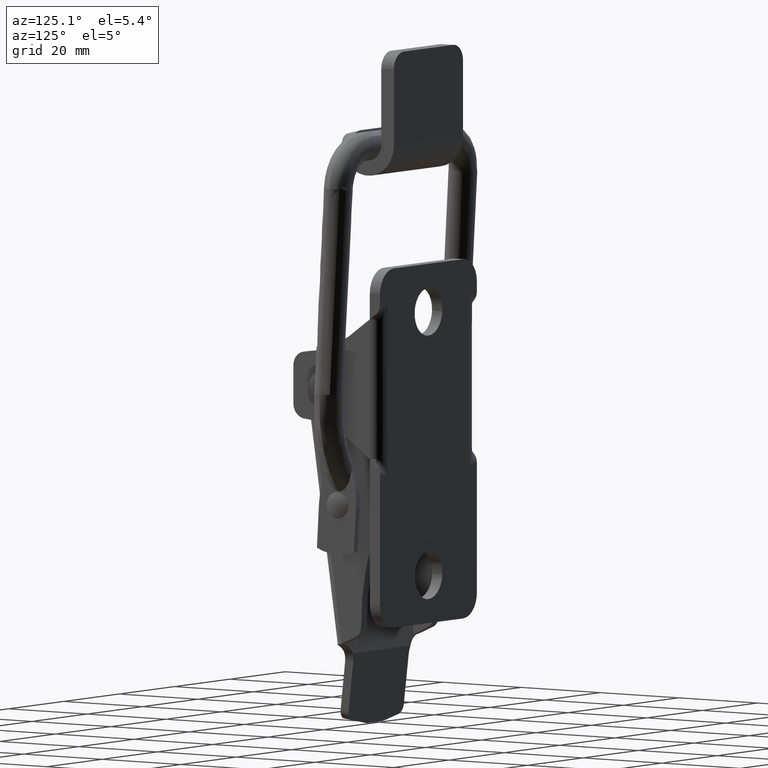
[diagram: clean part render]
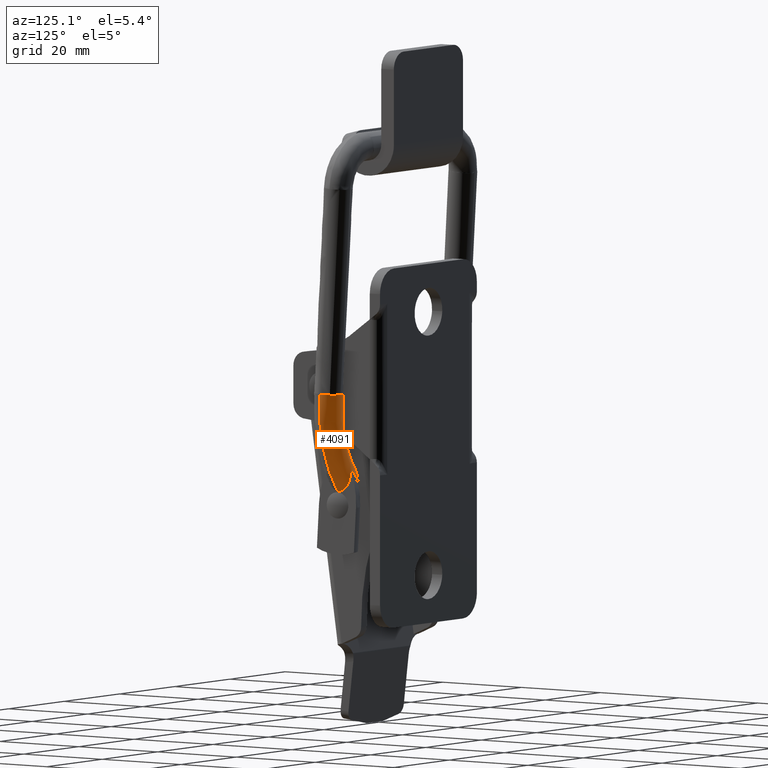
[diagram: same view with one face highlighted and labeled with its STEP entity id]
A machine part, auxiliary view. The second image highlights one B-rep face of the part: STEP entity #4091.
In plain terms, the highlighted face is a freeform B-spline surface patch.
Its self-contained STEP definition (entity closure, byte-faithful):
#723=CARTESIAN_POINT('',(0.137093469235572,-22.484727791801340,-51.154947865300997));
#724=VERTEX_POINT('',#723);
#730=CARTESIAN_POINT('',(-2.689967549346665,-19.504710261246451,-50.988514183178097));
#731=VERTEX_POINT('',#730);
#732=CARTESIAN_POINT('',(-2.689967549346665,-19.504710261246451,-50.988514183178097));
#733=CARTESIAN_POINT('',(-1.907019794257721,-19.548666006713979,-51.032519331018229));
#734=CARTESIAN_POINT('',(-1.147001929759529,-19.915162416843760,-51.076101186494540));
#735=CARTESIAN_POINT('',(-0.142610684296185,-21.040741415285868,-51.135409986723197));
#736=CARTESIAN_POINT('',(0.131808299511303,-21.760927585027929,-51.152717164481800));
#737=CARTESIAN_POINT('',(0.137093469235572,-22.484727791801340,-51.154947865300997));
#738=B_SPLINE_CURVE_WITH_KNOTS('',3,(#732,#733,#734,#735,#736,#737),.UNSPECIFIED.,.F.,.U.,(4,2,4),(0.500000000000000,0.625000000000000,0.740274518667277),.UNSPECIFIED.);
#739=EDGE_CURVE('',#731,#724,#738,.T.);
#741=CARTESIAN_POINT('',(-3.621479552913594,-19.601999171914159,-50.936558849480321));
#742=VERTEX_POINT('',#741);
#743=CARTESIAN_POINT('',(-3.621479552913594,-19.601999171914159,-50.936558849480321));
#744=CARTESIAN_POINT('',(-3.318439139552745,-19.521238628405740,-50.953329756953480));
#745=CARTESIAN_POINT('',(-3.003139846527462,-19.487127932410040,-50.970912505912608));
#746=CARTESIAN_POINT('',(-2.689967549346665,-19.504710261246451,-50.988514183178097));
#747=B_SPLINE_CURVE_WITH_KNOTS('',3,(#743,#744,#745,#746),.UNSPECIFIED.,.F.,.U.,(4,4),(0.450000050397062,0.500000000000000),.UNSPECIFIED.);
#748=EDGE_CURVE('',#742,#731,#747,.T.);
#750=CARTESIAN_POINT('',(-3.026135161405098,-25.495284800460020,-50.985681034919203));
#751=VERTEX_POINT('',#750);
#765=CARTESIAN_POINT('',(-0.935845694825824,-24.800423444203219,-51.100993816314677));
#766=VERTEX_POINT('',#765);
#767=CARTESIAN_POINT('',(-0.935845694825824,-24.800423444203219,-51.100993816314677));
#768=CARTESIAN_POINT('',(-1.512803321931368,-25.282671585493059,-51.069941681681748));
#769=CARTESIAN_POINT('',(-2.275578239368927,-25.537432026979609,-51.027865683849633));
#770=CARTESIAN_POINT('',(-3.026135161405098,-25.495284800460020,-50.985681034919203));
#771=B_SPLINE_CURVE_WITH_KNOTS('',3,(#767,#768,#769,#770),.UNSPECIFIED.,.F.,.U.,(4,4),(0.880170062629592,1.0),.UNSPECIFIED.);
#772=EDGE_CURVE('',#766,#751,#771,.T.);
#819=CARTESIAN_POINT('',(0.137093469235572,-22.484727791801340,-51.154947865300997));
#820=CARTESIAN_POINT('',(0.137536116357904,-22.545794040707410,-51.155135883232063));
#821=CARTESIAN_POINT('',(0.136063086660573,-22.606886023827151,-51.155216587800290));
#822=CARTESIAN_POINT('',(0.088606824372564,-23.452070795242939,-51.154815294985063));
#823=CARTESIAN_POINT('',(-0.277460730384392,-24.213321500281399,-51.136330111005691));
#824=CARTESIAN_POINT('',(-0.886404468811603,-24.758385273664921,-51.103652864048442));
#825=CARTESIAN_POINT('',(-0.910952138594781,-24.779616092199308,-51.102333600290649));
#826=CARTESIAN_POINT('',(-0.935845694825824,-24.800423444203219,-51.100993816314677));
#827=B_SPLINE_CURVE_WITH_KNOTS('',3,(#819,#820,#821,#822,#823,#824,#825,#826),.UNSPECIFIED.,.F.,.U.,(4,2,2,4),(0.740274518667277,0.750000000000000,0.875000000000000,0.880170062629592),.UNSPECIFIED.);
#828=EDGE_CURVE('',#724,#766,#827,.T.);
#3865=CARTESIAN_POINT('',(-3.621480011083741,-19.601999294016991,-50.936558824124212));
#3866=CARTESIAN_POINT('',(-3.318439775159710,-19.521238697169021,-50.953329721508688));
#3867=CARTESIAN_POINT('',(-3.003140162187055,-19.487127914688070,-50.970912488171138));
#3868=CARTESIAN_POINT('',(-1.907036017245690,-19.548666127642399,-51.032518420695503));
#3869=CARTESIAN_POINT('',(-1.147040558775686,-19.915162704789850,-51.076099018899299));
#3870=CARTESIAN_POINT('',(-0.102039557167935,-21.086301579277752,-51.137805935645702));
#3871=CARTESIAN_POINT('',(0.176531044614666,-21.883732199342798,-51.155552273317703));
#3872=CARTESIAN_POINT('',(0.088522569579867,-23.452060946274049,-51.154810556838001));
#3873=CARTESIAN_POINT('',(-0.277514565770748,-24.213301567074200,-51.136327070052303));
#3874=CARTESIAN_POINT('',(-1.446978346376486,-25.260114476756151,-51.073571207800804));
#3875=CARTESIAN_POINT('',(-2.243203629304120,-25.539240666855950,-51.029685272436602));
#3876=CARTESIAN_POINT('',(-3.026135161405098,-25.495284800460020,-50.985681034919203));
#3877=CARTESIAN_POINT('',(-3.802769927812618,-19.593355566685968,-54.170736776253463));
#3878=CARTESIAN_POINT('',(-3.499148472711398,-19.512622681801670,-54.177138833039542));
#3879=CARTESIAN_POINT('',(-3.183603370704478,-19.478523603996749,-54.190342121589431));
#3880=CARTESIAN_POINT('',(-2.087942104974020,-19.540040700892551,-54.259848935804101));
#3881=CARTESIAN_POINT('',(-1.330584255034796,-19.906411519437100,-54.350483973132299));
#3882=CARTESIAN_POINT('',(-0.294011724729301,-21.077148532580701,-54.562553229695702));
#3883=CARTESIAN_POINT('',(-0.021180084605107,-21.874305524521748,-54.682681561921392));
#3884=CARTESIAN_POINT('',(-0.120475533483800,-23.442096119496650,-54.883297331849199));
#3885=CARTESIAN_POINT('',(-0.491991177717930,-24.203075530327851,-54.962549411178003));
#3886=CARTESIAN_POINT('',(-1.668988678502940,-25.249529239522449,-55.034193697267412));
#3887=CARTESIAN_POINT('',(-2.467222781336410,-25.528559651048699,-55.026144730479700));
#3888=CARTESIAN_POINT('',(-3.249837971142320,-25.484618867551720,-54.976497006040752));
#3889=CARTESIAN_POINT('',(-3.983781969730311,-18.952628384161279,-57.399957494247957));
#3890=CARTESIAN_POINT('',(-3.679580142537829,-18.873949050278998,-57.396005822296232));
#3891=CARTESIAN_POINT('',(-3.363789909279549,-18.840717329012239,-57.404836015517738));
#3892=CARTESIAN_POINT('',(-2.268570877297390,-18.900669654687299,-57.482232196435596));
#3893=CARTESIAN_POINT('',(-1.513846791756330,-19.257721331929151,-57.619853094342297));
#3894=CARTESIAN_POINT('',(-0.485690448853022,-20.398679052943649,-57.982065548164499));
#3895=CARTESIAN_POINT('',(-0.218589406255615,-21.175559269945499,-58.204426660386702));
#3896=CARTESIAN_POINT('',(-0.329155378998603,-22.703470973576351,-58.606106452286902));
#3897=CARTESIAN_POINT('',(-0.706141547576023,-23.445093835536898,-58.782951655031297));
#3898=CARTESIAN_POINT('',(-1.890661788669690,-24.464929567905202,-58.988800210652592));
#3899=CARTESIAN_POINT('',(-2.690901783695905,-24.736862460474299,-59.016535982585502));
#3900=CARTESIAN_POINT('',(-3.473201092254592,-24.694039370706420,-58.961252996215599));
#3901=CARTESIAN_POINT('',(-4.319149983709560,-16.500768383500940,-63.382859666926223));
#3902=CARTESIAN_POINT('',(-4.013872131548191,-16.429955818277680,-63.359711912289860));
#3903=CARTESIAN_POINT('',(-3.697627418567314,-16.400046777191580,-63.360434272898011));
#3904=CARTESIAN_POINT('',(-2.603228299466250,-16.454004757793950,-63.452457545126599));
#3905=CARTESIAN_POINT('',(-1.853387281700540,-16.775356552935850,-63.677191452006092));
#3906=CARTESIAN_POINT('',(-0.840834769381968,-17.802235392033449,-64.317773303088700));
#3907=CARTESIAN_POINT('',(-0.584358403815212,-18.501439087868899,-64.729676651407786));
#3908=CARTESIAN_POINT('',(-0.715820221281464,-19.876582239589151,-65.504134375565101));
#3909=CARTESIAN_POINT('',(-1.102948884432904,-20.544053793980051,-65.861919770263185));
#3910=CARTESIAN_POINT('',(-2.301416481946215,-21.461921050250201,-66.316586536161594));
#3911=CARTESIAN_POINT('',(-3.105375453325550,-21.706664679112251,-66.410668145450103));
#3912=CARTESIAN_POINT('',(-3.887089109826310,-21.668123264396279,-66.344937236715410));
#3913=CARTESIAN_POINT('',(-4.473283509548539,-14.691272861999050,-66.132572722943479));
#3914=CARTESIAN_POINT('',(-4.167510703107965,-14.626268754847020,-66.100595077236960));
#3915=CARTESIAN_POINT('',(-3.851056936722444,-14.598813027101921,-66.097587964494267));
#3916=CARTESIAN_POINT('',(-2.757034964438005,-14.648345060588881,-66.196339464799692));
#3917=CARTESIAN_POINT('',(-2.009440079768245,-14.943337714203061,-66.461143962795902));
#3918=CARTESIAN_POINT('',(-1.004065079994958,-15.885985984022151,-67.229771285280592));
#3919=CARTESIAN_POINT('',(-0.752475895966597,-16.527836929834351,-67.728861031255207));
#3920=CARTESIAN_POINT('',(-0.893549467862047,-17.790182849676398,-68.674790643192196));
#3921=CARTESIAN_POINT('',(-1.285343516332196,-18.402904508658050,-69.115805632817697));
#3922=CARTESIAN_POINT('',(-2.490226674767345,-19.245482959087848,-69.684924796592298));
#3923=CARTESIAN_POINT('',(-3.295896315799450,-19.470151293356150,-69.809524430125094));
#3924=CARTESIAN_POINT('',(-4.077340581715305,-19.434771269443232,-69.738987644198943));
#3925=CARTESIAN_POINT('',(-4.602741061580987,-12.428412770812290,-68.442071056289734));
#3926=CARTESIAN_POINT('',(-4.296552126172706,-12.370682411842260,-68.402669748215686));
#3927=CARTESIAN_POINT('',(-3.979922599759623,-12.346298890741229,-68.396527109709595));
#3928=CARTESIAN_POINT('',(-2.886217710729600,-12.390288450785141,-68.500935315576797));
#3929=CARTESIAN_POINT('',(-2.140511245017000,-12.652272385844960,-68.799428851956804));
#3930=CARTESIAN_POINT('',(-1.141170683203044,-13.489441379967500,-69.675709410377195));
#3931=CARTESIAN_POINT('',(-0.893690359106881,-14.059471292410000,-70.248100443327303));
#3932=CARTESIAN_POINT('',(-1.042844938917210,-15.180564809262149,-71.338193713679004));
#3933=CARTESIAN_POINT('',(-1.438561373872524,-15.724724907336901,-71.849183339077797));
#3934=CARTESIAN_POINT('',(-2.648838365344310,-16.473021569435200,-72.514527467840310));
#3935=CARTESIAN_POINT('',(-3.455946238608210,-16.672550247792248,-72.664784893361201));
#3936=CARTESIAN_POINT('',(-4.237164016486799,-16.641129133475179,-72.590207603455994));
#3937=B_SPLINE_SURFACE_WITH_KNOTS('',3,3,((#3865,#3877,#3889,#3901,#3913,#3925),(#3866,#3878,#3890,#3902,#3914,#3926),(#3867,#3879,#3891,#3903,#3915,#3927),(#3868,#3880,#3892,#3904,#3916,#3928),(#3869,#3881,#3893,#3905,#3917,#3929),(#3870,#3882,#3894,#3906,#3918,#3930),(#3871,#3883,#3895,#3907,#3919,#3931),(#3872,#3884,#3896,#3908,#3920,#3932),(#3873,#3885,#3897,#3909,#3921,#3933),(#3874,#3886,#3898,#3910,#3922,#3934),(#3875,#3887,#3899,#3911,#3923,#3935),(#3876,#3888,#3900,#3912,#3924,#3936)),.UNSPECIFIED.,.F.,.F.,.U.,(4,2,2,2,2,4),(4,2,4),(0.0,0.942477796076944,3.298672286269305,5.654866776461665,8.011061266654025,10.367255756846390),(0.0,11.991285144683710,23.982570289367420),.UNSPECIFIED.);
#3938=ORIENTED_EDGE('',*,*,#748,.T.);
#3939=ORIENTED_EDGE('',*,*,#739,.T.);
#3940=ORIENTED_EDGE('',*,*,#828,.T.);
#3941=ORIENTED_EDGE('',*,*,#772,.T.);
#3942=CARTESIAN_POINT('',(-4.198275687322552,-17.300000099621560,-71.896447275743867));
#3943=VERTEX_POINT('',#3942);
#3944=CARTESIAN_POINT('',(-3.026135161405098,-25.495284800460020,-50.985681034919203));
#3945=CARTESIAN_POINT('',(-3.249837971142320,-25.484618867551720,-54.976497006040752));
#3946=CARTESIAN_POINT('',(-3.473201092254592,-24.694039370706420,-58.961252996215599));
#3947=CARTESIAN_POINT('',(-3.870553073759265,-21.789017457379590,-66.049937469326821));
#3948=CARTESIAN_POINT('',(-4.046829591225017,-19.787087354827008,-69.194677323347449));
#3949=CARTESIAN_POINT('',(-4.198275687322552,-17.300000099621560,-71.896447275743867));
#3950=B_SPLINE_CURVE_WITH_KNOTS('',3,(#3944,#3945,#3946,#3947,#3948,#3949),.UNSPECIFIED.,.F.,.U.,(4,2,4),(0.0,0.500000000000000,0.960047077071566),.UNSPECIFIED.);
#3951=EDGE_CURVE('',#751,#3943,#3950,.T.);
#3952=ORIENTED_EDGE('',*,*,#3951,.T.);
#3953=CARTESIAN_POINT('',(-0.785983358709918,-17.300000000000001,-67.568005634166397));
#3954=VERTEX_POINT('',#3953);
#3955=CARTESIAN_POINT('',(-4.198275687322552,-17.300000099621560,-71.896447275743867));
#3956=CARTESIAN_POINT('',(-4.146919304475364,-17.299999999999731,-71.903612669980987));
#3957=CARTESIAN_POINT('',(-4.095457454322913,-17.300000000000001,-71.908704579038215));
#3958=CARTESIAN_POINT('',(-3.919973849493190,-17.300000000000001,-71.919122360898186));
#3959=CARTESIAN_POINT('',(-3.795461670084166,-17.300000000000001,-71.914807235418280));
#3960=CARTESIAN_POINT('',(-3.545261227258367,-17.299999999999990,-71.883056976096711));
#3961=CARTESIAN_POINT('',(-3.423052260049225,-17.300000000000001,-71.856056159606908));
#3962=CARTESIAN_POINT('',(-3.244254169519071,-17.300000000000001,-71.800900879550497));
#3963=CARTESIAN_POINT('',(-3.185370832133020,-17.299999999999979,-71.780053606571144));
#3964=CARTESIAN_POINT('',(-3.068984872392905,-17.299999999999979,-71.733611233251466));
#3965=CARTESIAN_POINT('',(-3.011264438026329,-17.299999999999990,-71.707899201788067));
#3966=CARTESIAN_POINT('',(-2.842355117943330,-17.299999999999979,-71.624940548378731));
#3967=CARTESIAN_POINT('',(-2.735054814024958,-17.300000000000011,-71.561869802996327));
#3968=CARTESIAN_POINT('',(-2.529698593669752,-17.300000000000001,-71.422199538055438));
#3969=CARTESIAN_POINT('',(-2.431653709207419,-17.299999999999962,-71.345583873663955));
#3970=CARTESIAN_POINT('',(-2.290982462511108,-17.299999999999962,-71.221299981694429));
#3971=CARTESIAN_POINT('',(-2.245038717837821,-17.299999999999990,-71.178174285650869));
#3972=CARTESIAN_POINT('',(-2.156230927323975,-17.299999999999990,-71.089894788369961));
#3973=CARTESIAN_POINT('',(-2.113273473932544,-17.299999999999571,-71.044673288522588));
#3974=CARTESIAN_POINT('',(-1.905221351311217,-17.299999999999571,-70.813528773497652));
#3975=CARTESIAN_POINT('',(-1.760266601838705,-17.299999999999748,-70.612543706382127));
#3976=CARTESIAN_POINT('',(-1.599285415137408,-17.299999999999748,-70.346196226790624));
#3977=CARTESIAN_POINT('',(-1.568116440928182,-17.300000000000001,-70.292158471076959));
#3978=CARTESIAN_POINT('',(-1.507731971145924,-17.300000000000001,-70.182622010597342));
#3979=CARTESIAN_POINT('',(-1.478555411750057,-17.299999999999969,-70.127183350988744));
#3980=CARTESIAN_POINT('',(-1.394448503888515,-17.299999999999969,-69.960090796555235));
#3981=CARTESIAN_POINT('',(-1.342691694270480,-17.300000000000011,-69.847241772158483));
#3982=CARTESIAN_POINT('',(-1.198789935992592,-17.300000000000018,-69.504863419260772));
#3983=CARTESIAN_POINT('',(-1.117917691513886,-17.300000000000001,-69.271535152046056));
#3984=CARTESIAN_POINT('',(-0.981488490008819,-17.300000000000001,-68.796347281744630));
#3985=CARTESIAN_POINT('',(-0.925961106122390,-17.300000000000001,-68.554341795739532));
#3986=CARTESIAN_POINT('',(-0.838282580229748,-17.300000000000001,-68.063007119047455));
#3987=CARTESIAN_POINT('',(-0.806560845985138,-17.300000000000001,-67.816083886775232));
#3988=CARTESIAN_POINT('',(-0.785983358709912,-17.300000000000001,-67.568005634166397));
#3989=B_SPLINE_CURVE_WITH_KNOTS('',3,(#3955,#3956,#3957,#3958,#3959,#3960,#3961,#3962,#3963,#3964,#3965,#3966,#3967,#3968,#3969,#3970,#3971,#3972,#3973,#3974,#3975,#3976,#3977,#3978,#3979,#3980,#3981,#3982,#3983,#3984,#3985,#3986,#3987,#3988),.UNSPECIFIED.,.F.,.U.,(4,2,2,2,2,2,2,2,2,2,2,2,2,2,2,2,4),(0.486996199471220,0.499999999999968,0.531249999999968,0.562499999999968,0.578124999999968,0.593749999999969,0.624999999999968,0.656249999999967,0.671874999999967,0.687499999999966,0.749999999999960,0.765624999999960,0.781249999999961,0.812499999999965,0.874999999999977,0.937499999999988,1.0),.UNSPECIFIED.);
#3990=EDGE_CURVE('',#3943,#3954,#3989,.T.);
#3991=ORIENTED_EDGE('',*,*,#3990,.T.);
#3992=CARTESIAN_POINT('',(-0.783582625831556,-17.210326567776349,-67.568140205816505));
#3993=VERTEX_POINT('',#3992);
#3994=CARTESIAN_POINT('',(-0.785983358709918,-17.300000000000001,-67.568005634166397));
#3995=CARTESIAN_POINT('',(-0.784874937854079,-17.270070912265869,-67.568067766036577));
#3996=CARTESIAN_POINT('',(-0.784076896431361,-17.240180039415549,-67.568112499772738));
#3997=CARTESIAN_POINT('',(-0.783582625831628,-17.210326567776359,-67.568140205816505));
#3998=QUASI_UNIFORM_CURVE('',3,(#3994,#3995,#3996,#3997),.UNSPECIFIED.,.F.,.U.);
#3999=EDGE_CURVE('',#3954,#3993,#3998,.T.);
#4000=ORIENTED_EDGE('',*,*,#3999,.T.);
#4001=CARTESIAN_POINT('',(-0.951374214095548,-14.500000000000000,-70.541396776110702));
#4002=VERTEX_POINT('',#4001);
#4003=CARTESIAN_POINT('',(-0.951374214095551,-14.500000000000000,-70.541396776110759));
#4004=CARTESIAN_POINT('',(-0.944465244797736,-14.563267777873451,-70.374456384815119));
#4005=CARTESIAN_POINT('',(-0.940079701157031,-14.628457928826990,-70.208367826847820));
#4006=CARTESIAN_POINT('',(-0.934582592684417,-14.764588921400589,-69.878802531628537));
#4007=CARTESIAN_POINT('',(-0.933479289679790,-14.835508754241429,-69.715315951835919));
#4008=CARTESIAN_POINT('',(-0.932353074544428,-14.985984942759931,-69.392322367246251));
#4009=CARTESIAN_POINT('',(-0.932340138359935,-15.065495583179491,-69.232794064061721));
#4010=CARTESIAN_POINT('',(-0.930952796496760,-15.194852092258129,-68.998190309643647));
#4011=CARTESIAN_POINT('',(-0.930255692631562,-15.239671458340950,-68.920779292044216));
#4012=CARTESIAN_POINT('',(-0.927938033881022,-15.333666370035010,-68.767986363467344));
#4013=CARTESIAN_POINT('',(-0.926315321546445,-15.382748341835701,-68.692780922120576));
#4014=CARTESIAN_POINT('',(-0.919405187453426,-15.536730908487250,-68.473357622113724));
#4015=CARTESIAN_POINT('',(-0.911988299819218,-15.648554655801140,-68.334628178958582));
#4016=CARTESIAN_POINT('',(-0.894633487062639,-15.838024984032730,-68.144415118563089));
#4017=CARTESIAN_POINT('',(-0.887788135235834,-15.905097408395971,-68.083918760266755));
#4018=CARTESIAN_POINT('',(-0.872578067678021,-16.044522152562919,-67.973105410494483));
#4019=CARTESIAN_POINT('',(-0.864183939855903,-16.117216257618740,-67.922413199258344));
#4020=CARTESIAN_POINT('',(-0.846656262865813,-16.269053480511371,-67.831060285209361));
#4021=CARTESIAN_POINT('',(-0.837523281789360,-16.348199643923419,-67.790404163228644));
#4022=CARTESIAN_POINT('',(-0.819894039703847,-16.513183813301790,-67.719261473763709));
#4023=CARTESIAN_POINT('',(-0.811592006859123,-16.597411759944400,-67.689465582104646));
#4024=CARTESIAN_POINT('',(-0.797574048256239,-16.768388884329649,-67.639893091751176));
#4025=CARTESIAN_POINT('',(-0.791850809044165,-16.855233593550309,-67.620067837751805));
#4026=CARTESIAN_POINT('',(-0.784398004741077,-17.031253728404071,-67.588486131175884));
#4027=CARTESIAN_POINT('',(-0.782675899566948,-17.120640572251961,-67.576711604719733));
#4028=CARTESIAN_POINT('',(-0.783582625831556,-17.210326567776349,-67.568140205816505));
#4029=B_SPLINE_CURVE_WITH_KNOTS('',3,(#4003,#4004,#4005,#4006,#4007,#4008,#4009,#4010,#4011,#4012,#4013,#4014,#4015,#4016,#4017,#4018,#4019,#4020,#4021,#4022,#4023,#4024,#4025,#4026,#4027,#4028),.UNSPECIFIED.,.F.,.U.,(4,2,2,2,2,2,2,2,2,2,2,2,4),(0.0,0.124999999999997,0.249999999999994,0.374999999999991,0.437499999999990,0.499999999999989,0.624999999999986,0.687499999999989,0.749999999999991,0.812499999999993,0.874999999999995,0.937499999999998,1.0),.UNSPECIFIED.);
#4030=EDGE_CURVE('',#4002,#3993,#4029,.T.);
#4031=ORIENTED_EDGE('',*,*,#4030,.F.);
#4032=CARTESIAN_POINT('',(-4.468090291835999,-14.500000821289159,-66.039921845265212));
#4033=VERTEX_POINT('',#4032);
#4034=CARTESIAN_POINT('',(-4.468090291835999,-14.500000821289159,-66.039921845265212));
#4035=CARTESIAN_POINT('',(-4.452276678231902,-14.500000820562329,-66.033982822986758));
#4036=CARTESIAN_POINT('',(-4.436382471210192,-14.500000819808410,-66.028219960476306));
#4037=CARTESIAN_POINT('',(-4.362440451499274,-14.500000816191029,-66.002381502005889));
#4038=CARTESIAN_POINT('',(-4.303173205974427,-14.500000812976120,-65.984455116468453));
#4039=CARTESIAN_POINT('',(-4.183174744842025,-14.500000805787121,-65.954159529288276));
#4040=CARTESIAN_POINT('',(-4.122890993506533,-14.500000801841921,-65.941884844303274));
#4041=CARTESIAN_POINT('',(-3.941156139495321,-14.500000788917159,-65.913983437713910));
#4042=CARTESIAN_POINT('',(-3.818826558237886,-14.500000778854780,-65.907227648023664));
#4043=CARTESIAN_POINT('',(-3.664280664447308,-14.500000764262831,-65.915282309647324));
#4044=CARTESIAN_POINT('',(-3.633266547409359,-14.500000761240250,-65.917730801649412));
#4045=CARTESIAN_POINT('',(-3.571832670002315,-14.500000755064990,-65.924240468717642));
#4046=CARTESIAN_POINT('',(-3.541318357314287,-14.500000751903530,-65.928304819035574));
#4047=CARTESIAN_POINT('',(-3.450371846604924,-14.500000742202120,-65.942880673366361));
#4048=CARTESIAN_POINT('',(-3.330694632047549,-14.500000728689940,-65.968646622891711));
#4049=CARTESIAN_POINT('',(-3.213993310774457,-14.500000714093920,-66.006301645765376));
#4050=CARTESIAN_POINT('',(-3.098707009959539,-14.500000698982770,-66.049609855904095));
#4051=CARTESIAN_POINT('',(-3.041547927495653,-14.500000691135281,-66.074219127463962));
#4052=CARTESIAN_POINT('',(-2.875137839633741,-14.500000667295041,-66.154632315551893));
#4053=CARTESIAN_POINT('',(-2.770062203064561,-14.500000650907619,-66.217181966362787));
#4054=CARTESIAN_POINT('',(-2.619645798077037,-14.500000625720350,-66.321979016897103));
#4055=CARTESIAN_POINT('',(-2.570716258740491,-14.500000617222771,-66.358755000367694));
#4056=CARTESIAN_POINT('',(-2.475101974519738,-14.500000600038520,-66.435729365988365));
#4057=CARTESIAN_POINT('',(-2.428309437736286,-14.500000591330860,-66.476028596896668));
#4058=CARTESIAN_POINT('',(-2.291852704835673,-14.500000565085390,-66.601071379017469));
#4059=CARTESIAN_POINT('',(-2.206855283815866,-14.500000547582630,-66.689151044464452));
#4060=CARTESIAN_POINT('',(-2.046756962605411,-14.500000512567579,-66.873126242272619));
#4061=CARTESIAN_POINT('',(-1.971672301126519,-14.500000495055261,-66.969034599303455));
#4062=CARTESIAN_POINT('',(-1.830251457556409,-14.500000460022170,-67.167760504158252));
#4063=CARTESIAN_POINT('',(-1.763922810416963,-14.500000442501401,-67.270584002778520));
#4064=CARTESIAN_POINT('',(-1.670513360563336,-14.500000416214361,-67.429623766376466));
#4065=CARTESIAN_POINT('',(-1.640432304836174,-14.500000407460380,-67.483387772810275));
#4066=CARTESIAN_POINT('',(-1.582726683816192,-14.500000390099681,-67.591535065318652));
#4067=CARTESIAN_POINT('',(-1.555036538066371,-14.500000381474340,-67.646032313036571));
#4068=CARTESIAN_POINT('',(-1.422077302784298,-14.500000338606560,-67.920519304336636));
#4069=CARTESIAN_POINT('',(-1.332924725285273,-14.500000305125360,-68.146380885030212));
#4070=CARTESIAN_POINT('',(-1.182484201024542,-14.500000239479331,-68.608256154548471));
#4071=CARTESIAN_POINT('',(-1.121251112065460,-14.500000207292610,-68.844505053981962));
#4072=CARTESIAN_POINT('',(-1.025344387016455,-14.500000144273320,-69.325800040925941));
#4073=CARTESIAN_POINT('',(-0.991336068727607,-14.500000113880210,-69.567487064130518));
#4074=CARTESIAN_POINT('',(-0.950429686276919,-14.500000055264660,-70.052882037454538));
#4075=CARTESIAN_POINT('',(-0.943533777676681,-14.500000027042381,-70.296590148259696));
#4076=CARTESIAN_POINT('',(-0.951374214095548,-14.500000000000000,-70.541396776110702));
#4077=B_SPLINE_CURVE_WITH_KNOTS('',3,(#4034,#4035,#4036,#4037,#4038,#4039,#4040,#4041,#4042,#4043,#4044,#4045,#4046,#4047,#4048,#4049,#4050,#4051,#4052,#4053,#4054,#4055,#4056,#4057,#4058,#4059,#4060,#4061,#4062,#4063,#4064,#4065,#4066,#4067,#4068,#4069,#4070,#4071,#4072,#4073,#4074,#4075,#4076),.UNSPECIFIED.,.F.,.U.,(4,2,2,2,2,2,2,1,2,2,2,2,2,2,2,2,2,2,2,2,2,4),(0.433193408786808,0.437500000000017,0.453125000000017,0.468750000000018,0.500000000000018,0.507812500000018,0.515625000000019,0.531250000000019,0.546875000000018,0.562500000000018,0.593750000000018,0.609375000000017,0.625000000000016,0.656250000000014,0.687500000000011,0.718750000000009,0.734375000000008,0.750000000000006,0.812500000000005,0.875000000000003,0.937500000000002,1.0),.UNSPECIFIED.);
#4078=EDGE_CURVE('',#4033,#4002,#4077,.T.);
#4079=ORIENTED_EDGE('',*,*,#4078,.F.);
#4080=CARTESIAN_POINT('',(-3.621479552913594,-19.601999171914159,-50.936558849480321));
#4081=CARTESIAN_POINT('',(-3.802769603299552,-19.593355310061948,-54.170736674448918));
#4082=CARTESIAN_POINT('',(-3.983781787458170,-18.952627984376740,-57.399957257116128));
#4083=CARTESIAN_POINT('',(-4.264268432536635,-16.902004609430179,-62.403781732324042));
#4084=CARTESIAN_POINT('',(-4.370938844698934,-15.813226798900621,-64.306760023374551));
#4085=CARTESIAN_POINT('',(-4.468090291835999,-14.500000821289159,-66.039921845265212));
#4086=B_SPLINE_CURVE_WITH_KNOTS('',3,(#4080,#4081,#4082,#4083,#4084,#4085),.UNSPECIFIED.,.F.,.U.,(4,2,4),(0.0,0.500000000000000,0.836354089449605),.UNSPECIFIED.);
#4087=EDGE_CURVE('',#742,#4033,#4086,.T.);
#4088=ORIENTED_EDGE('',*,*,#4087,.F.);
#4089=EDGE_LOOP('',(#3938,#3939,#3940,#3941,#3952,#3991,#4000,#4031,#4079,#4088));
#4090=FACE_OUTER_BOUND('',#4089,.T.);
#4091=ADVANCED_FACE('',(#4090),#3937,.T.);